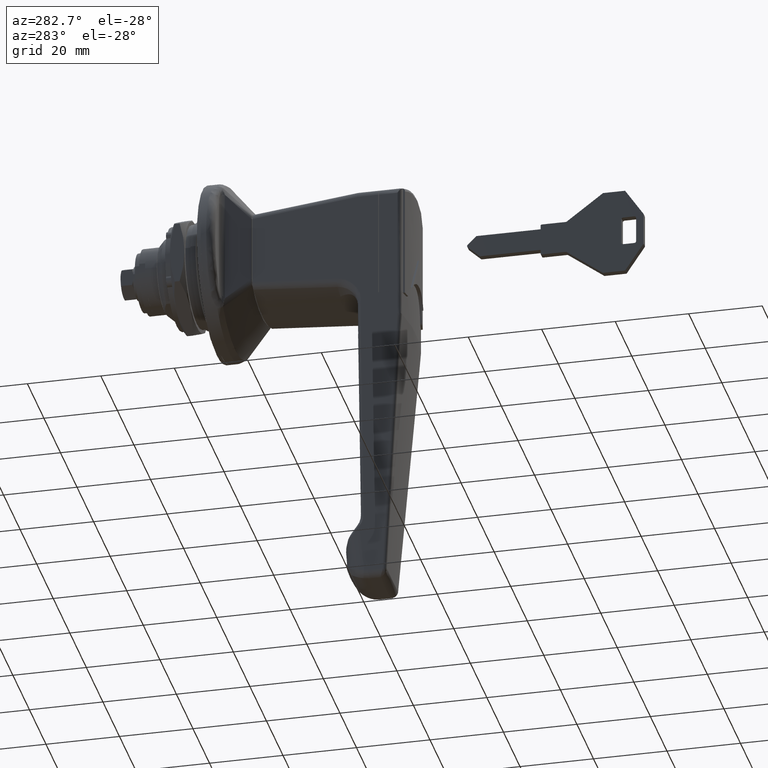
[diagram: clean part render]
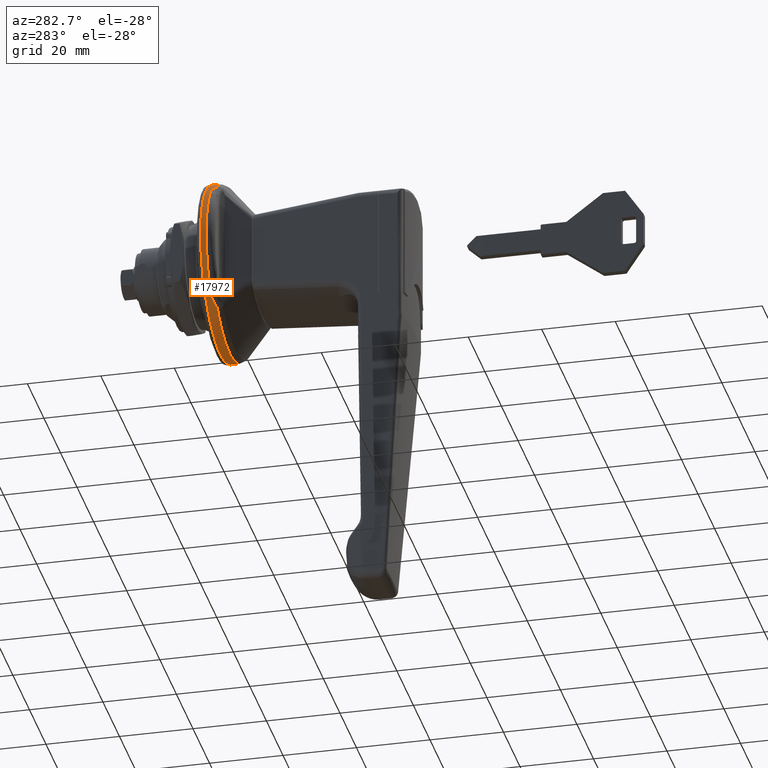
[diagram: same view with one face highlighted and labeled with its STEP entity id]
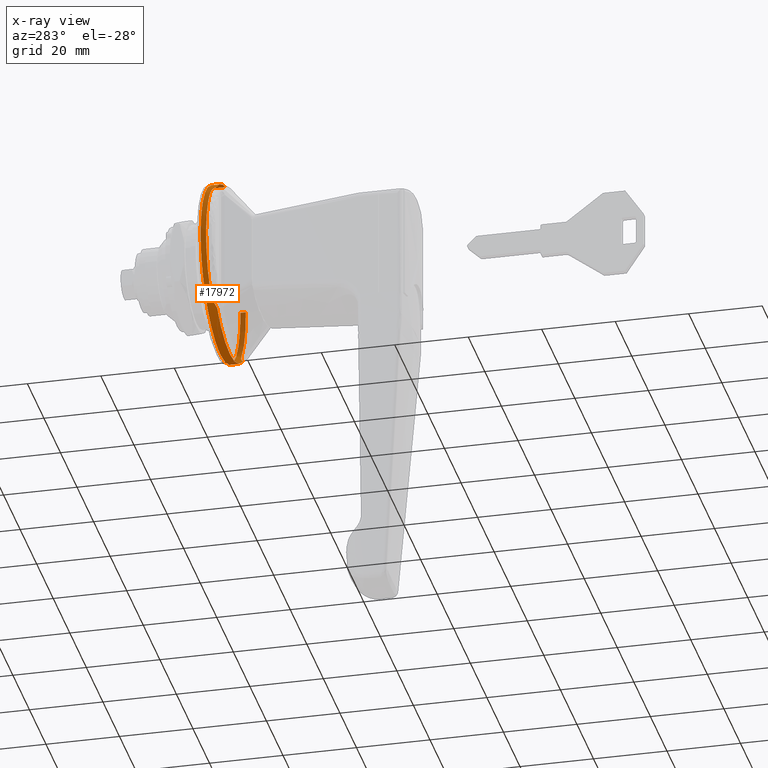
[diagram: x-ray of the same camera — body ghosted, the highlighted face saturated]
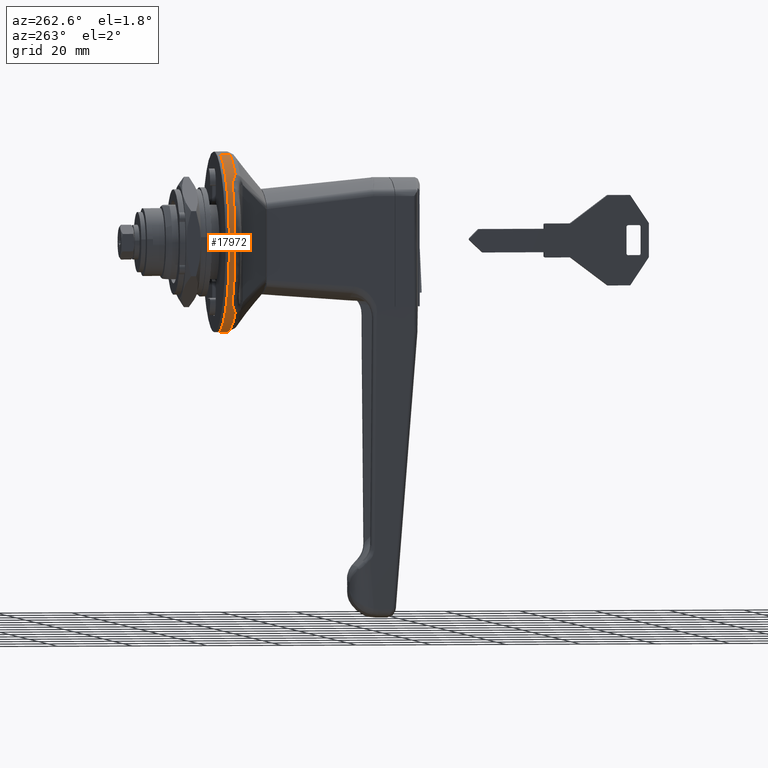
[diagram: same view with one face highlighted and labeled with its STEP entity id]
A machine part, auxiliary view. The second image highlights one B-rep face of the part: STEP entity #17972.
The next image is the same camera in x-ray: the body ghosted, the highlighted face saturated — about 14% of this face is hidden behind the body in this view.
A second angle (auxiliary view) of the same face is appended — the face is thin or edge-on in the first view.
In plain terms, the highlighted face is a freeform B-spline surface patch.
Its self-contained STEP definition (entity closure, byte-faithful):
#17688=CARTESIAN_POINT('',(-0.933852040917930,5.215714018894891,23.426402354461150));
#17689=CARTESIAN_POINT('',(-0.933852040917930,24.854776182753664,19.053911423241388));
#17690=CARTESIAN_POINT('',(-0.933852040917930,23.977157317964579,-1.046865296768069));
#17691=CARTESIAN_POINT('',(-0.933852040917930,22.930292021196514,-25.024022614732651));
#17692=CARTESIAN_POINT('',(-0.933852040917930,-1.046865296768069,-23.977157317964579));
#17693=CARTESIAN_POINT('',(-0.933852040917930,-25.024022614732651,-22.930292021196514));
#17694=CARTESIAN_POINT('',(-0.933852040917930,-23.977157317964579,1.046865296768069));
#17695=CARTESIAN_POINT('',(-3.713720021341210,5.215714018894891,23.426402354461150));
#17696=CARTESIAN_POINT('',(-3.713720021341209,24.854776182753664,19.053911423241388));
#17697=CARTESIAN_POINT('',(-3.713720021341210,23.977157317964579,-1.046865296768069));
#17698=CARTESIAN_POINT('',(-3.713720021341209,22.930292021196514,-25.024022614732651));
#17699=CARTESIAN_POINT('',(-3.713720021341210,-1.046865296768069,-23.977157317964579));
#17700=CARTESIAN_POINT('',(-3.713720021341209,-25.024022614732651,-22.930292021196514));
#17701=CARTESIAN_POINT('',(-3.713720021341210,-23.977157317964579,1.046865296768069));
#17709=(BOUNDED_SURFACE()B_SPLINE_SURFACE(2,1,((#17688,#17695),(#17689,#17696),(#17690,#17697),(#17691,#17698),(#17692,#17699),(#17693,#17700),(#17694,#17701)),.UNSPECIFIED.,.F.,.F.,.U.)B_SPLINE_SURFACE_WITH_KNOTS((3,2,2,3),(2,2),(0.0,34.992761749279062,74.757263737096167,114.521765724913290),(0.0,2.779867980423280),.UNSPECIFIED.)GEOMETRIC_REPRESENTATION_ITEM()RATIONAL_B_SPLINE_SURFACE(((0.938140952186599,0.938140952186599),(0.742253967444162,0.742253967444162),(1.0,1.0),(0.707106781186548,0.707106781186548),(1.0,1.0),(0.707106781186548,0.707106781186548),(1.0,1.0)))REPRESENTATION_ITEM('')SURFACE());
#17710=CARTESIAN_POINT('',(-3.645918363277930,15.480837877010300,18.339674441650551));
#17711=VERTEX_POINT('',#17710);
#17712=CARTESIAN_POINT('',(-3.544335643461816,5.215715201816114,23.426407667561190));
#17713=VERTEX_POINT('',#17712);
#17714=CARTESIAN_POINT('',(-3.645918363277930,15.480837877010300,18.339674441650551));
#17715=CARTESIAN_POINT('',(-3.635989498462486,14.940923571443481,18.795425110814278));
#17716=CARTESIAN_POINT('',(-3.626703047192342,14.384281584516520,19.224547567503901));
#17717=CARTESIAN_POINT('',(-3.609731049495478,13.238380307861670,20.030877227025311));
#17718=CARTESIAN_POINT('',(-3.602041555496914,12.649119263427901,20.408081554835618));
#17719=CARTESIAN_POINT('',(-3.588193959618053,11.438049557729220,21.110684526069939));
#17720=CARTESIAN_POINT('',(-3.582034486094150,10.816242053986549,21.436084985083600));
#17721=CARTESIAN_POINT('',(-3.575064506229051,10.018215067963601,21.809774941703289));
#17722=CARTESIAN_POINT('',(-3.573705024939120,9.857414241333665,21.882924768277281));
#17723=CARTESIAN_POINT('',(-3.571055322464565,9.534465774955503,22.025552569503809));
#17724=CARTESIAN_POINT('',(-3.569766480749823,9.372498935515896,22.094955368359489));
#17725=CARTESIAN_POINT('',(-3.565991940193208,8.885135606920166,22.297488409161652));
#17726=CARTESIAN_POINT('',(-3.563589218280717,8.558277086898453,22.424946153272739));
#17727=CARTESIAN_POINT('',(-3.556687475452860,7.571944580393145,22.784982773425529));
#17728=CARTESIAN_POINT('',(-3.552553978983317,6.906724249281311,22.995267277280181));
#17729=CARTESIAN_POINT('',(-3.547329393995123,5.896440458136279,23.267013031785790));
#17730=CARTESIAN_POINT('',(-3.545748283461660,5.557033066189649,23.350415991035590));
#17731=CARTESIAN_POINT('',(-3.544335643461816,5.215715201816114,23.426407667561190));
#17732=B_SPLINE_CURVE_WITH_KNOTS('',3,(#17714,#17715,#17716,#17717,#17718,#17719,#17720,#17721,#17722,#17723,#17724,#17725,#17726,#17727,#17728,#17729,#17730,#17731),.UNSPECIFIED.,.F.,.U.,(4,2,2,2,2,2,2,2,4),(0.0,0.062500000000000,0.125000000000000,0.187500000000000,0.203125000000000,0.218750000000000,0.250000000000000,0.312500000000000,0.343853671093785),.UNSPECIFIED.);
#17733=EDGE_CURVE('',#17711,#17713,#17732,.T.);
#17734=ORIENTED_EDGE('',*,*,#17733,.T.);
#17735=CARTESIAN_POINT('',(-0.999999999999983,5.215714019055527,23.426402354425392));
#17736=VERTEX_POINT('',#17735);
#17737=CARTESIAN_POINT('',(-0.999999999999983,5.215714019055527,23.426402354425392));
#17738=CARTESIAN_POINT('',(-3.544335643461816,5.215715201816114,23.426407667561190));
#17739=QUASI_UNIFORM_CURVE('',1,(#17737,#17738),.UNSPECIFIED.,.F.,.U.);
#17740=EDGE_CURVE('',#17736,#17713,#17739,.T.);
#17741=ORIENTED_EDGE('',*,*,#17740,.F.);
#17742=CARTESIAN_POINT('',(-0.999999999999983,0.0,-24.0));
#17743=VERTEX_POINT('',#17742);
#17744=CARTESIAN_POINT('',(-0.999999999999983,5.215714019055527,23.426402354425395));
#17745=CARTESIAN_POINT('',(-0.999999999999983,24.0,19.244220974217889));
#17746=CARTESIAN_POINT('',(-0.999999999999983,24.0,0.0));
#17747=CARTESIAN_POINT('',(-0.999999999999983,23.999999999999996,-23.999999999999996));
#17748=CARTESIAN_POINT('',(-0.999999999999983,0.0,-24.0));
#17756=(BOUNDED_CURVE()B_SPLINE_CURVE(2,(#17744,#17745,#17746,#17747,#17748),.UNSPECIFIED.,.F.,.U.)B_SPLINE_CURVE_WITH_KNOTS((3,2,3),(0.037187972680737,0.250000000000000,0.500000000000000),.UNSPECIFIED.)CURVE()GEOMETRIC_REPRESENTATION_ITEM()RATIONAL_B_SPLINE_CURVE((0.925824929568094,0.750675201264979,1.0,0.707106781186548,1.0))REPRESENTATION_ITEM(''));
#17757=EDGE_CURVE('',#17736,#17743,#17756,.T.);
#17758=ORIENTED_EDGE('',*,*,#17757,.T.);
#17759=CARTESIAN_POINT('',(-0.999999999999983,-23.977158659261910,1.046834575105373));
#17760=VERTEX_POINT('',#17759);
#17761=CARTESIAN_POINT('',(-0.999999999999983,0.0,-24.0));
#17762=CARTESIAN_POINT('',(-0.999999999999983,-23.999999999999996,-23.999999999999996));
#17763=CARTESIAN_POINT('',(-0.999999999999983,-24.0,0.0));
#17764=CARTESIAN_POINT('',(-0.999999999999983,-24.0,0.523666480146780));
#17765=CARTESIAN_POINT('',(-0.999999999999983,-23.977158659261903,1.046834575105374));
#17773=(BOUNDED_CURVE()B_SPLINE_CURVE(2,(#17761,#17762,#17763,#17764,#17765),.UNSPECIFIED.,.F.,.U.)B_SPLINE_CURVE_WITH_KNOTS((3,2,3),(0.500000000000000,0.750000000000000,0.757645238861782),.UNSPECIFIED.)CURVE()GEOMETRIC_REPRESENTATION_ITEM()RATIONAL_B_SPLINE_CURVE((1.0,0.707106781186548,1.0,0.991043045524700,0.982633915500902))REPRESENTATION_ITEM(''));
#17774=EDGE_CURVE('',#17743,#17760,#17773,.T.);
#17775=ORIENTED_EDGE('',*,*,#17774,.T.);
#17776=CARTESIAN_POINT('',(-2.500000000002843,-23.977157576279481,1.046859380351663));
#17777=VERTEX_POINT('',#17776);
#17778=CARTESIAN_POINT('',(-0.999999999999983,-23.977158659261910,1.046834575105373));
#17779=CARTESIAN_POINT('',(-2.500000000002843,-23.977157576279481,1.046859380351663));
#17780=QUASI_UNIFORM_CURVE('',1,(#17778,#17779),.UNSPECIFIED.,.F.,.U.);
#17781=EDGE_CURVE('',#17760,#17777,#17780,.T.);
#17782=ORIENTED_EDGE('',*,*,#17781,.T.);
#17783=CARTESIAN_POINT('',(-2.500000000000000,-18.877897728856649,-14.819749570719379));
#17784=VERTEX_POINT('',#17783);
#17785=CARTESIAN_POINT('',(-2.500000000002844,-23.977157576279478,1.046859380351663));
#17786=CARTESIAN_POINT('',(-2.500000000000000,-24.364745651865110,-7.830417298263369));
#17787=CARTESIAN_POINT('',(-2.500000000000000,-18.877897728856649,-14.819749570719379));
#17795=(BOUNDED_CURVE()B_SPLINE_CURVE(2,(#17785,#17786,#17787),.UNSPECIFIED.,.F.,.U.)B_SPLINE_CURVE_WITH_KNOTS((3,3),(0.468434224914216,1.0),.UNSPECIFIED.)CURVE()GEOMETRIC_REPRESENTATION_ITEM()RATIONAL_B_SPLINE_CURVE((0.893714840449120,0.886552738999436,1.0))REPRESENTATION_ITEM(''));
#17796=EDGE_CURVE('',#17777,#17784,#17795,.T.);
#17797=ORIENTED_EDGE('',*,*,#17796,.T.);
#17798=CARTESIAN_POINT('',(-2.912022732390510,-16.948986859267350,-16.992111241525901));
#17799=VERTEX_POINT('',#17798);
#17800=CARTESIAN_POINT('',(-2.500000000000000,-18.877897728856649,-14.819749570719379));
#17801=CARTESIAN_POINT('',(-2.500000000000001,-18.572341189003200,-15.208977815246110));
#17802=CARTESIAN_POINT('',(-2.529059030398283,-18.257866192885160,-15.584775566717219));
#17803=CARTESIAN_POINT('',(-2.626967499520250,-17.774799711303672,-16.128087985517681));
#17804=CARTESIAN_POINT('',(-2.668718094923850,-17.611890961601802,-16.305788263533412));
#17805=CARTESIAN_POINT('',(-2.773412558781944,-17.282765648804300,-16.654232064764969));
#17806=CARTESIAN_POINT('',(-2.836330234059694,-17.116545752902820,-16.824977596623629));
#17807=CARTESIAN_POINT('',(-2.912022732390510,-16.948986859267350,-16.992111241525901));
#17808=B_SPLINE_CURVE_WITH_KNOTS('',3,(#17800,#17801,#17802,#17803,#17804,#17805,#17806,#17807),.UNSPECIFIED.,.F.,.U.,(4,2,2,4),(0.0,0.499999999999999,0.750000000000000,1.0),.UNSPECIFIED.);
#17809=EDGE_CURVE('',#17784,#17799,#17808,.T.);
#17810=ORIENTED_EDGE('',*,*,#17809,.T.);
#17811=CARTESIAN_POINT('',(-3.645918363270610,-15.480837877121351,-18.339674441556848));
#17812=VERTEX_POINT('',#17811);
#17813=CARTESIAN_POINT('',(-2.912022732390510,-16.948986859267350,-16.992111241525901));
#17814=CARTESIAN_POINT('',(-2.966036119878443,-16.829418557934702,-17.111376089740851));
#17815=CARTESIAN_POINT('',(-3.024564258299687,-16.709808686761608,-17.228168414723530));
#17816=CARTESIAN_POINT('',(-3.148900479373344,-16.470173366032000,-17.457401942073201));
#17817=CARTESIAN_POINT('',(-3.214783818772061,-16.350169574711931,-17.569825846099299));
#17818=CARTESIAN_POINT('',(-3.316348079893887,-16.169181673327611,-17.735959809408421));
#17819=CARTESIAN_POINT('',(-3.350633392351047,-16.108698316602862,-17.790911163294709));
#17820=CARTESIAN_POINT('',(-3.419068439966851,-15.987139820258051,-17.900224631078999));
#17821=CARTESIAN_POINT('',(-3.453248130807384,-15.926073762153051,-17.954579437710439));
#17822=CARTESIAN_POINT('',(-3.519573905254465,-15.802791254380580,-18.063181802580289));
#17823=CARTESIAN_POINT('',(-3.551866759664917,-15.740619051960641,-18.117393277293921));
#17824=CARTESIAN_POINT('',(-3.595148002818284,-15.645409458490930,-18.199530754992921));
#17825=CARTESIAN_POINT('',(-3.608717657917881,-15.613348265313840,-18.227045932023660));
#17826=CARTESIAN_POINT('',(-3.626251992057119,-15.564308495452810,-18.268901524828880));
#17827=CARTESIAN_POINT('',(-3.631609841235452,-15.547832826323489,-18.282925603887609));
#17828=CARTESIAN_POINT('',(-3.640592181908010,-15.514628492440179,-18.311110752058578));
#17829=CARTESIAN_POINT('',(-3.644454101927578,-15.497916559035041,-18.325258029384329));
#17830=CARTESIAN_POINT('',(-3.645918363270610,-15.480837877121351,-18.339674441556848));
#17831=B_SPLINE_CURVE_WITH_KNOTS('',3,(#17813,#17814,#17815,#17816,#17817,#17818,#17819,#17820,#17821,#17822,#17823,#17824,#17825,#17826,#17827,#17828,#17829,#17830),.UNSPECIFIED.,.F.,.U.,(4,2,2,2,2,2,2,2,4),(0.0,0.250000000000002,0.500000000000003,0.625000000000002,0.750000000000001,0.875000000000001,0.937500000000000,0.968750000000000,1.0),.UNSPECIFIED.);
#17832=EDGE_CURVE('',#17799,#17812,#17831,.T.);
#17833=ORIENTED_EDGE('',*,*,#17832,.T.);
#17834=CARTESIAN_POINT('',(-3.645918363265515,15.480837876844950,-18.339674441790152));
#17835=VERTEX_POINT('',#17834);
#17836=CARTESIAN_POINT('',(-3.645918363270610,-15.480837877121351,-18.339674441556848));
#17837=CARTESIAN_POINT('',(-3.635989498440075,-14.940923642446670,-18.795425428914040));
#17838=CARTESIAN_POINT('',(-3.626703047171564,-14.384281726662561,-19.224548205331931));
#17839=CARTESIAN_POINT('',(-3.609731049475641,-13.238380592747490,-20.030878507262130));
#17840=CARTESIAN_POINT('',(-3.602041555476431,-12.649119619911900,-20.408083157752412));
#17841=CARTESIAN_POINT('',(-3.588193959595339,-11.438050057836801,-21.110686777246190));
#17842=CARTESIAN_POINT('',(-3.582034486069891,-10.816242626119660,-21.436087561839429));
#17843=CARTESIAN_POINT('',(-3.575064506202509,-10.018215730382600,-21.809777927253990));
#17844=CARTESIAN_POINT('',(-3.573705024911035,-9.857414921705811,-21.882927835814090));
#17845=CARTESIAN_POINT('',(-3.571055322440886,-9.534466492110827,-22.025555800409020));
#17846=CARTESIAN_POINT('',(-3.569766480728119,-9.372499671009285,-22.094958680770020));
#17847=CARTESIAN_POINT('',(-3.565991940176877,-8.885136397268122,-22.297491965554279));
#17848=CARTESIAN_POINT('',(-3.563589218267216,-8.558277913603357,-22.424949871608518));
#17849=CARTESIAN_POINT('',(-3.556687475446370,-7.571945515535188,-22.784986975468531));
#17850=CARTESIAN_POINT('',(-3.552553978979292,-6.906725255871007,-22.995271798968830));
#17851=CARTESIAN_POINT('',(-3.545595560457011,-5.561168292899962,-23.357199876838440));
#17852=CARTESIAN_POINT('',(-3.542769073997816,-4.880831431663679,-23.508842489307231));
#17853=CARTESIAN_POINT('',(-3.538488166908607,-3.504909153092465,-23.752974602772220));
#17854=CARTESIAN_POINT('',(-3.537033967314960,-2.809324933552878,-23.845468756420608));
#17855=CARTESIAN_POINT('',(-3.535716770881272,-1.754144129438258,-23.938413691639770));
#17856=CARTESIAN_POINT('',(-3.535420942921932,-1.401563974552170,-23.961640754286641));
#17857=CARTESIAN_POINT('',(-3.535054691395403,-0.696237946479182,-23.992495950486990));
#17858=CARTESIAN_POINT('',(-3.534983975362858,-0.343216661779051,-24.000146128301971));
#17859=CARTESIAN_POINT('',(-3.534988076483781,0.716644891990198,-23.999701404931429));
#17860=CARTESIAN_POINT('',(-3.535292574082116,1.418224186362385,-23.968268110176179));
#17861=CARTESIAN_POINT('',(-3.537041846954678,2.811690057291433,-23.844991823563280));
#17862=CARTESIAN_POINT('',(-3.538485521564101,3.503575930994546,-23.753144430092611));
#17863=CARTESIAN_POINT('',(-3.542757901008823,4.877721757227878,-23.509460756898481));
#17864=CARTESIAN_POINT('',(-3.545587120979688,5.559981869931975,-23.357625484972282));
#17865=CARTESIAN_POINT('',(-3.550845022688218,6.576038069520394,-23.084166434609859));
#17866=CARTESIAN_POINT('',(-3.552764448764922,6.913499407572883,-22.985384879797159));
#17867=CARTESIAN_POINT('',(-3.555868643996647,7.417824521252542,-22.825577263338470));
#17868=CARTESIAN_POINT('',(-3.556941822670191,7.585778694775997,-22.770310860515121));
#17869=CARTESIAN_POINT('',(-3.559146354903235,7.919547572001662,-22.656386767210090));
#17870=CARTESIAN_POINT('',(-3.560278552825138,8.085511386685747,-22.597685695682749));
#17871=CARTESIAN_POINT('',(-3.566066774376707,8.910772286107457,-22.295569699529480));
#17872=CARTESIAN_POINT('',(-3.571023810971254,9.556422626576765,-22.026373751978621));
#17873=CARTESIAN_POINT('',(-3.582068701481833,10.819300818462761,-21.434296906575032));
#17874=CARTESIAN_POINT('',(-3.588180703708691,11.436527077159640,-21.111413476895731));
#17875=CARTESIAN_POINT('',(-3.601962740321369,12.642587920170680,-20.412028347516429));
#17876=CARTESIAN_POINT('',(-3.609634705548538,13.231423614513560,-20.035528783536790));
#17877=CARTESIAN_POINT('',(-3.622384365890347,14.092919396746460,-19.429690399037959));
#17878=CARTESIAN_POINT('',(-3.626840140909365,14.376531732079810,-19.220825563428178));
#17879=CARTESIAN_POINT('',(-3.636133485856922,14.936026424084110,-18.789356419055270));
#17880=CARTESIAN_POINT('',(-3.640953905076881,15.210879357988290,-18.567551118508590));
#17881=CARTESIAN_POINT('',(-3.645918363265520,15.480837876844950,-18.339674441790152));
#17882=B_SPLINE_CURVE_WITH_KNOTS('',3,(#17836,#17837,#17838,#17839,#17840,#17841,#17842,#17843,#17844,#17845,#17846,#17847,#17848,#17849,#17850,#17851,#17852,#17853,#17854,#17855,#17856,#17857,#17858,#17859,#17860,#17861,#17862,#17863,#17864,#17865,#17866,#17867,#17868,#17869,#17870,#17871,#17872,#17873,#17874,#17875,#17876,#17877,#17878,#17879,#17880,#17881),.UNSPECIFIED.,.F.,.U.,(4,2,2,2,2,2,2,2,2,2,2,2,2,2,2,2,2,2,2,2,2,2,4),(0.0,0.062500000000000,0.125000000000000,0.187499999999999,0.203124999999999,0.218749999999999,0.249999999999999,0.312499999999999,0.374999999999999,0.437499999999999,0.468749999999999,0.499999999999999,0.562499999999998,0.624999999999998,0.687499999999998,0.718749999999998,0.734374999999998,0.749999999999998,0.812499999999999,0.874999999999999,0.937500000000000,0.968750000000000,1.0),.UNSPECIFIED.);
#17883=EDGE_CURVE('',#17812,#17835,#17882,.T.);
#17884=ORIENTED_EDGE('',*,*,#17883,.T.);
#17885=CARTESIAN_POINT('',(-2.912022732503370,16.948986858849000,-16.992111241943199));
#17886=VERTEX_POINT('',#17885);
#17887=CARTESIAN_POINT('',(-3.645918363265515,15.480837876844950,-18.339674441790152));
#17888=CARTESIAN_POINT('',(-3.644453459208805,15.497924055620681,-18.325251701386470));
#17889=CARTESIAN_POINT('',(-3.640588539932398,15.514645788373860,-18.311096113740629));
#17890=CARTESIAN_POINT('',(-3.631598523317794,15.547870824880210,-18.282893305989429));
#17891=CARTESIAN_POINT('',(-3.626234493591029,15.564361098512700,-18.268856717094160));
#17892=CARTESIAN_POINT('',(-3.608690783169515,15.613416081246520,-18.226987872172391));
#17893=CARTESIAN_POINT('',(-3.595116518250967,15.645482574576310,-18.199467909621241));
#17894=CARTESIAN_POINT('',(-3.551825744536884,15.740701548930380,-18.117321642183079));
#17895=CARTESIAN_POINT('',(-3.519532019930627,15.802871219066450,-18.063111813239448));
#17896=CARTESIAN_POINT('',(-3.453209712378183,15.926143058614070,-17.954517938963100));
#17897=CARTESIAN_POINT('',(-3.419034375073470,15.987200592489380,-17.900170295376281));
#17898=CARTESIAN_POINT('',(-3.350609898065315,16.108739783988771,-17.790873558083121));
#17899=CARTESIAN_POINT('',(-3.316330831319934,16.169212287978809,-17.735931830212269));
#17900=CARTESIAN_POINT('',(-3.214785405214410,16.350166992033991,-17.569827971020391));
#17901=CARTESIAN_POINT('',(-3.148869893878982,16.470229905108688,-17.457348712802869));
#17902=CARTESIAN_POINT('',(-3.024527722984283,16.709881511750030,-17.228097894741921));
#17903=CARTESIAN_POINT('',(-2.966012111893132,16.829471703755761,-17.111323078793021));
#17904=CARTESIAN_POINT('',(-2.912022732503370,16.948986858849000,-16.992111241943199));
#17905=B_SPLINE_CURVE_WITH_KNOTS('',3,(#17887,#17888,#17889,#17890,#17891,#17892,#17893,#17894,#17895,#17896,#17897,#17898,#17899,#17900,#17901,#17902,#17903,#17904),.UNSPECIFIED.,.F.,.U.,(4,2,2,2,2,2,2,2,4),(0.0,0.031249999999997,0.062499999999994,0.124999999999992,0.249999999999992,0.374999999999993,0.499999999999993,0.749999999999996,1.0),.UNSPECIFIED.);
#17906=EDGE_CURVE('',#17835,#17886,#17905,.T.);
#17907=ORIENTED_EDGE('',*,*,#17906,.T.);
#17908=CARTESIAN_POINT('',(-2.500000000000000,18.877897728739001,-14.819749570869220));
#17909=VERTEX_POINT('',#17908);
#17910=CARTESIAN_POINT('',(-2.912022732503370,16.948986858849000,-16.992111241943199));
#17911=CARTESIAN_POINT('',(-2.836330234150676,17.116545752510451,-16.824977597023260));
#17912=CARTESIAN_POINT('',(-2.773412558854964,17.282765648437891,-16.654232065145660));
#17913=CARTESIAN_POINT('',(-2.668718094967972,17.611890961286939,-16.305788263873971));
#17914=CARTESIAN_POINT('',(-2.626967499553194,17.774799711014388,-16.128087985837031));
#17915=CARTESIAN_POINT('',(-2.529059030405382,18.257866192671539,-15.584775566969560));
#17916=CARTESIAN_POINT('',(-2.500000000000002,18.572341188838621,-15.208977815449360));
#17917=CARTESIAN_POINT('',(-2.500000000000000,18.877897728739001,-14.819749570869220));
#17918=B_SPLINE_CURVE_WITH_KNOTS('',3,(#17910,#17911,#17912,#17913,#17914,#17915,#17916,#17917),.UNSPECIFIED.,.F.,.U.,(4,2,2,4),(0.0,0.250000000000001,0.500000000000001,1.0),.UNSPECIFIED.);
#17919=EDGE_CURVE('',#17886,#17909,#17918,.T.);
#17920=ORIENTED_EDGE('',*,*,#17919,.T.);
#17921=CARTESIAN_POINT('',(-2.500000000000000,18.877897728739001,14.819749570869220));
#17922=VERTEX_POINT('',#17921);
#17923=CARTESIAN_POINT('',(-2.500000000000000,18.877897728739001,-14.819749570869220));
#17924=CARTESIAN_POINT('',(-2.499999999999999,30.511872046171913,8.673617E-015));
#17925=CARTESIAN_POINT('',(-2.500000000000000,18.877897728739001,14.819749570869220));
#17933=(BOUNDED_CURVE()B_SPLINE_CURVE(2,(#17923,#17924,#17925),.UNSPECIFIED.,.F.,.U.)CURVE()GEOMETRIC_REPRESENTATION_ITEM()QUASI_UNIFORM_CURVE()RATIONAL_B_SPLINE_CURVE((1.0,0.786579072030787,1.0))REPRESENTATION_ITEM(''));
#17934=EDGE_CURVE('',#17909,#17922,#17933,.T.);
#17935=ORIENTED_EDGE('',*,*,#17934,.T.);
#17936=CARTESIAN_POINT('',(-2.912022732557700,16.948986858728698,16.992111242063149));
#17937=VERTEX_POINT('',#17936);
#17938=CARTESIAN_POINT('',(-2.500000000000000,18.877897728739001,14.819749570869220));
#17939=CARTESIAN_POINT('',(-2.500000000000002,18.572341188819831,15.208977815473281));
#17940=CARTESIAN_POINT('',(-2.529059030408912,18.257866192633092,15.584775567015480));
#17941=CARTESIAN_POINT('',(-2.626967499569257,17.774799710945629,16.128087985913002));
#17942=CARTESIAN_POINT('',(-2.668718094989433,17.611890961207958,16.305788263959489));
#17943=CARTESIAN_POINT('',(-2.773412558890297,17.282765648338309,16.654232065249190));
#17944=CARTESIAN_POINT('',(-2.836330234194205,17.116545752400480,16.824977597135259));
#17945=CARTESIAN_POINT('',(-2.912022732557700,16.948986858728698,16.992111242063149));
#17946=B_SPLINE_CURVE_WITH_KNOTS('',3,(#17938,#17939,#17940,#17941,#17942,#17943,#17944,#17945),.UNSPECIFIED.,.F.,.U.,(4,2,2,4),(0.0,0.500000000000001,0.750000000000000,1.0),.UNSPECIFIED.);
#17947=EDGE_CURVE('',#17922,#17937,#17946,.T.);
#17948=ORIENTED_EDGE('',*,*,#17947,.T.);
#17949=CARTESIAN_POINT('',(-2.912022732557700,16.948986858728698,16.992111242063149));
#17950=CARTESIAN_POINT('',(-2.966036120041752,16.829418557430490,17.111376090236192));
#17951=CARTESIAN_POINT('',(-3.024564258456275,16.709808686292149,17.228168415178349));
#17952=CARTESIAN_POINT('',(-3.148900479511416,16.470173365632601,17.457401942449490));
#17953=CARTESIAN_POINT('',(-3.214783818898303,16.350169574347870,17.569825846437620));
#17954=CARTESIAN_POINT('',(-3.316348079999393,16.169181673016961,17.735959809691511));
#17955=CARTESIAN_POINT('',(-3.350633392449169,16.108698316310079,17.790911163559699));
#17956=CARTESIAN_POINT('',(-3.419068440049557,15.987139820001140,17.900224631308340));
#17957=CARTESIAN_POINT('',(-3.453248130882051,15.926073761914161,17.954579437922231));
#17958=CARTESIAN_POINT('',(-3.519573905313040,15.802791254178020,18.063181802757381));
#17959=CARTESIAN_POINT('',(-3.551866759715387,15.740619051776390,18.117393277453889));
#17960=CARTESIAN_POINT('',(-3.595148002857753,15.645409458334610,18.199530755127281));
#17961=CARTESIAN_POINT('',(-3.608717657953888,15.613348265166920,18.227045932149480));
#17962=CARTESIAN_POINT('',(-3.626251992088608,15.564308495320180,18.268901524941871));
#17963=CARTESIAN_POINT('',(-3.631609841265543,15.547832826195670,18.282925603996301));
#17964=CARTESIAN_POINT('',(-3.640592181935690,15.514628492322030,18.311110752158669));
#17965=CARTESIAN_POINT('',(-3.644454101954692,15.497916558920020,18.325258029481500));
#17966=CARTESIAN_POINT('',(-3.645918363277930,15.480837877010300,18.339674441650551));
#17967=B_SPLINE_CURVE_WITH_KNOTS('',3,(#17949,#17950,#17951,#17952,#17953,#17954,#17955,#17956,#17957,#17958,#17959,#17960,#17961,#17962,#17963,#17964,#17965,#17966),.UNSPECIFIED.,.F.,.U.,(4,2,2,2,2,2,2,2,4),(0.0,0.249999999999998,0.499999999999997,0.624999999999999,0.750000000000002,0.875000000000004,0.937500000000002,0.968750000000001,1.0),.UNSPECIFIED.);
#17968=EDGE_CURVE('',#17937,#17711,#17967,.T.);
#17969=ORIENTED_EDGE('',*,*,#17968,.T.);
#17970=EDGE_LOOP('',(#17734,#17741,#17758,#17775,#17782,#17797,#17810,#17833,#17884,#17907,#17920,#17935,#17948,#17969));
#17971=FACE_OUTER_BOUND('',#17970,.T.);
#17972=ADVANCED_FACE('',(#17971),#17709,.T.);